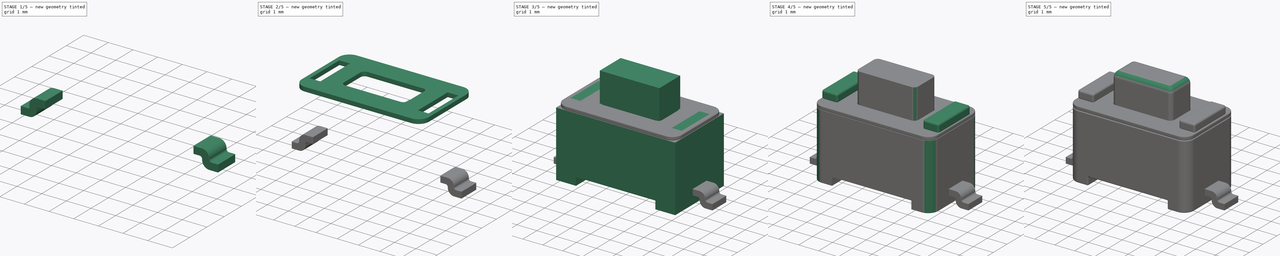
[diagram: build sequence overview — one tinted view per stage of 5, left to right]
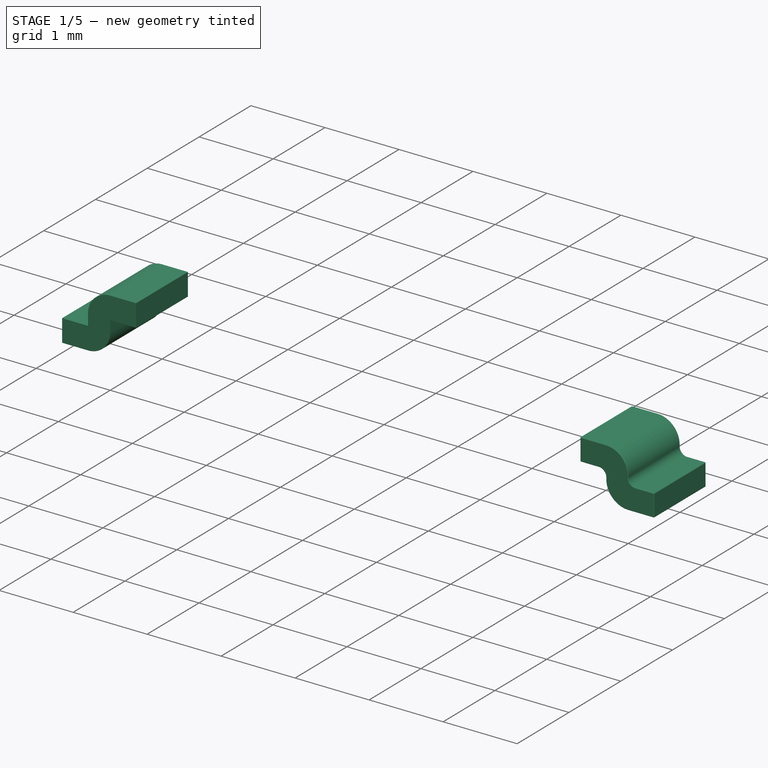
[diagram: stage 1 of 5 — iso view after this stage's code; geometry added in this stage tinted green]
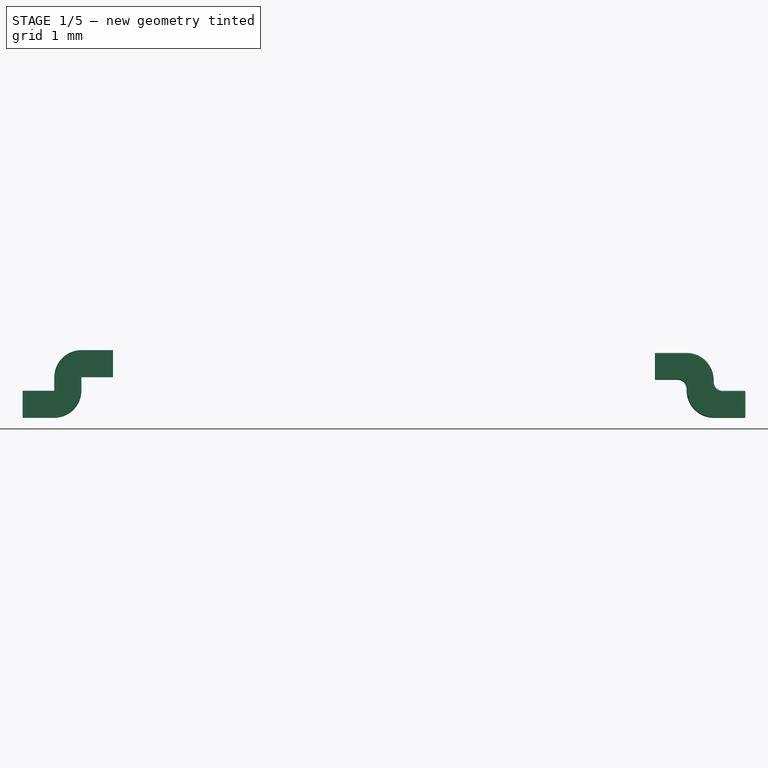
[diagram: stage 1 of 5 — front view after this stage's code; geometry added in this stage tinted green]
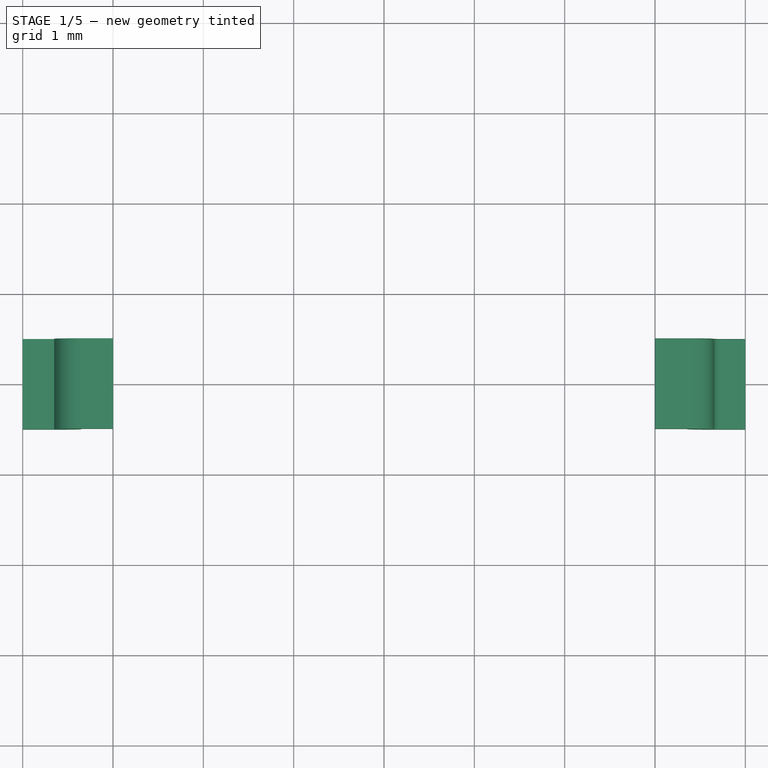
[diagram: stage 1 of 5 — top view after this stage's code; geometry added in this stage tinted green]
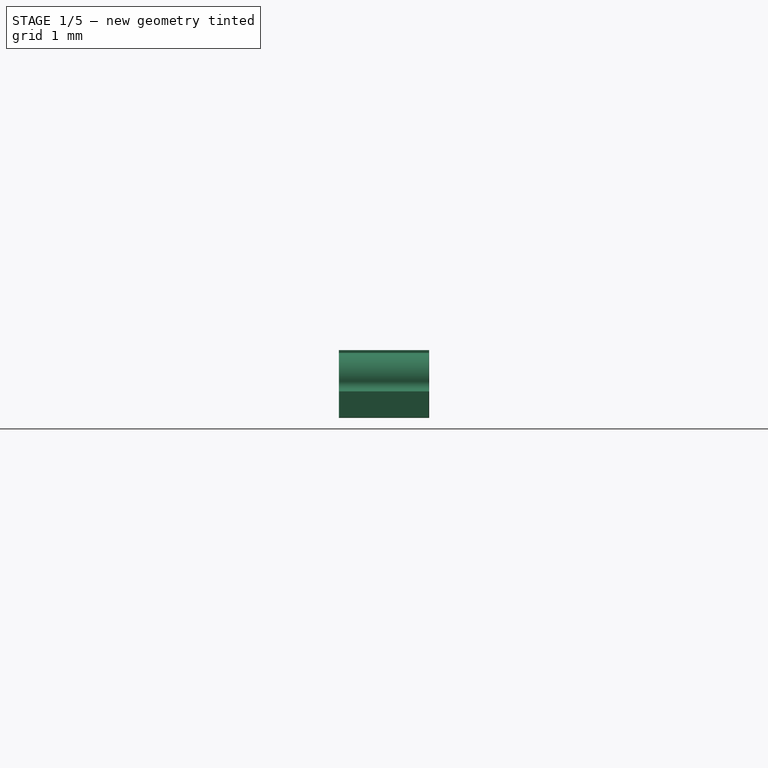
[diagram: stage 1 of 5 — right view after this stage's code; geometry added in this stage tinted green]
FCSTD DOCUMENT  (FreeCAD 0.15R4671 (Git))
Label: Button_3x6_SMD
License: All rights reserved
LicenseURL: http://en.wikipedia.org/wiki/All_rights_reserved
objects: PartDesign::Fillet×34, Sketcher::SketchObject×8, PartDesign::Pad×6, PartDesign::Mirrored×3, PartDesign::Pocket×2
note: 61 computed .brp shape members not serialized (recipe doc carries the construction recipe); baked Part::Feature solids carry a one-line shape summary decoded from their .brp

FEATURE [Sketcher::SketchObject] Sketch006
  Placement = pos=(0,0,0) rot=(-1,0,0;4.71239rad)
  sketch-geometry (16):
    g0: LineSegment StartX=-4 StartY=0.3 StartZ=0 EndX=-4 EndY=0 EndZ=0
    g1: LineSegment StartX=-4 StartY=0 StartZ=0 EndX=-3.35 EndY=0 EndZ=0
    g2: LineSegment StartX=-3.35 StartY=0 StartZ=0 EndX=-3.35 EndY=0.45 EndZ=0
    g3: LineSegment StartX=-3.35 StartY=0.45 StartZ=0 EndX=-3 EndY=0.45 EndZ=0
    g4: LineSegment StartX=-3 StartY=0.45 StartZ=0 EndX=-3 EndY=0.75 EndZ=0
    g5: LineSegment StartX=-3 StartY=0.75 StartZ=0 EndX=-3.65 EndY=0.75 EndZ=0
    g6: LineSegment StartX=-3.65 StartY=0.75 StartZ=0 EndX=-3.65 EndY=0.3 EndZ=0
    g7: LineSegment StartX=-3.65 StartY=0.3 StartZ=0 EndX=-4 EndY=0.3 EndZ=0
    g8: LineSegment StartX=3 StartY=0.42 StartZ=0 EndX=3.35 EndY=0.42 EndZ=0
    g9: LineSegment StartX=3.35 StartY=0.42 StartZ=0 EndX=3.35 EndY=0 EndZ=0
    g10: LineSegment StartX=3.35 StartY=0 StartZ=0 EndX=4 EndY=0 EndZ=0
    g11: LineSegment StartX=4 StartY=0 StartZ=0 EndX=4 EndY=0.3 EndZ=0
    g12: LineSegment StartX=4 StartY=0.3 StartZ=0 EndX=3.65 EndY=0.3 EndZ=0
    g13: LineSegment StartX=3.65 StartY=0.3 StartZ=0 EndX=3.65 EndY=0.72 EndZ=0
    g14: LineSegment StartX=3.65 StartY=0.72 StartZ=0 EndX=3 EndY=0.72 EndZ=0
    g15: LineSegment StartX=3 StartY=0.72 StartZ=0 EndX=3 EndY=0.42 EndZ=0
  constraints (48):
    c: PointOnObject(g0,g-1)
    c: Vertical(g0)
    c: Coincident(g0,g1)
    c: PointOnObject(g1,g-1)
    c: Coincident(g1,g2)
    c: Vertical(g2)
    c: Coincident(g2,g3)
    c: Horizontal(g3)
    c: Coincident(g3,g4)
    c: Coincident(g4,g5)
    c: Horizontal(g5)
    c: Coincident(g5,g6)
    c: Vertical(g6)
    c: Coincident(g6,g7)
    c: Coincident(g7,g0)
    c: Horizontal(g7)
    c: Vertical(g4)
    c: DistanceX(g-1,g0) = -4
    c: DistanceX(g1) = 0.65
    c: DistanceX(g5) = -0.65
    c: DistanceY(g4) = 0.3
    c: DistanceX(g1,g6) = -0.3
    c: DistanceY(g0) = -0.3
    c: DistanceY(g6) = -0.45
    c: Horizontal(g8)
    c: Coincident(g8,g9)
    c: PointOnObject(g9,g-1)
    c: Vertical(g9)
    c: Coincident(g9,g10)
    c: PointOnObject(g10,g-1)
    c: Coincident(g10,g11)
    c: Vertical(g11)
    c: Coincident(g11,g12)
    c: Horizontal(g12)
    c: Coincident(g12,g13)
    c: Vertical(g13)
    c: Coincident(g13,g14)
    c: Horizontal(g14)
    c: Coincident(g14,g15)
    c: Coincident(g15,g8)
    c: Vertical(g15)
    c: DistanceX(g-1,g10) = 4
    c: DistanceY(g11) = 0.3
    c: DistanceY(g15) = -0.3
    c: DistanceX(g8,g13) = 0.3
    c: DistanceX(g14) = -0.65
    c: DistanceX(g10) = 0.65
    c: DistanceY(g13) = 0.42
FEATURE [PartDesign::Pad] Pad004
  Length = 1
  Length2 = 100
  Midplane = true
  Placement = pos=(0,0,0) rot=(-1,0,0;4.71239rad)
  Sketch = -> Sketch006
  Type = 0
FEATURE [PartDesign::Fillet] Fillet022
  Base = -> Pad004 [Edge41]
  Placement = pos=(0,0,0) rot=(-1,0,0;4.71239rad)
  Radius = 0.3
FEATURE [PartDesign::Fillet] Fillet023
  Base = -> Fillet022 [Edge26]
  Placement = pos=(0,0,0) rot=(-1,0,0;4.71239rad)
  Radius = 0.3
FEATURE [PartDesign::Fillet] Fillet024
  Base = -> Fillet023 [Edge20]
  Placement = pos=(0,0,0) rot=(-1,0,0;4.71239rad)
  Radius = 0.1
FEATURE [PartDesign::Fillet] Fillet025
  Base = -> Fillet024 [Edge29]
  Placement = pos=(0,0,0) rot=(-1,0,0;4.71239rad)
  Radius = 0.1
FEATURE [PartDesign::Fillet] Fillet026
  Base = -> Fillet025 [Edge26,Edge22,Edge24,Edge20]
  Placement = pos=(0,0,0) rot=(-1,0,0;4.71239rad)
  Radius = 0.01
FEATURE [PartDesign::Fillet] Fillet027
  Base = -> Fillet026 [Edge4]
  Placement = pos=(0,0,0) rot=(-1,0,0;4.71239rad)
  Radius = 0.01
FEATURE [PartDesign::Fillet] Fillet028
  Base = -> Fillet027 [Edge44]
  Placement = pos=(0,0,0) rot=(-1,0,0;4.71239rad)
  Radius = 0.01
FEATURE [PartDesign::Fillet] Fillet029
  Base = -> Fillet028 [Edge129,Edge117]
  Placement = pos=(0,0,0) rot=(-1,0,0;4.71239rad)
  Radius = 0.3
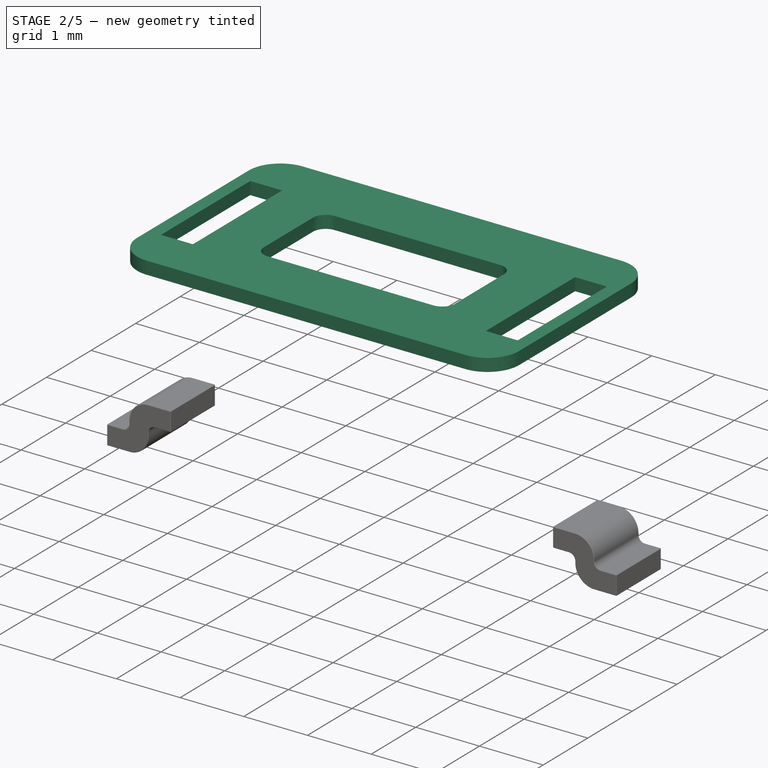
[diagram: stage 2 of 5 — iso view after this stage's code; geometry added in this stage tinted green]
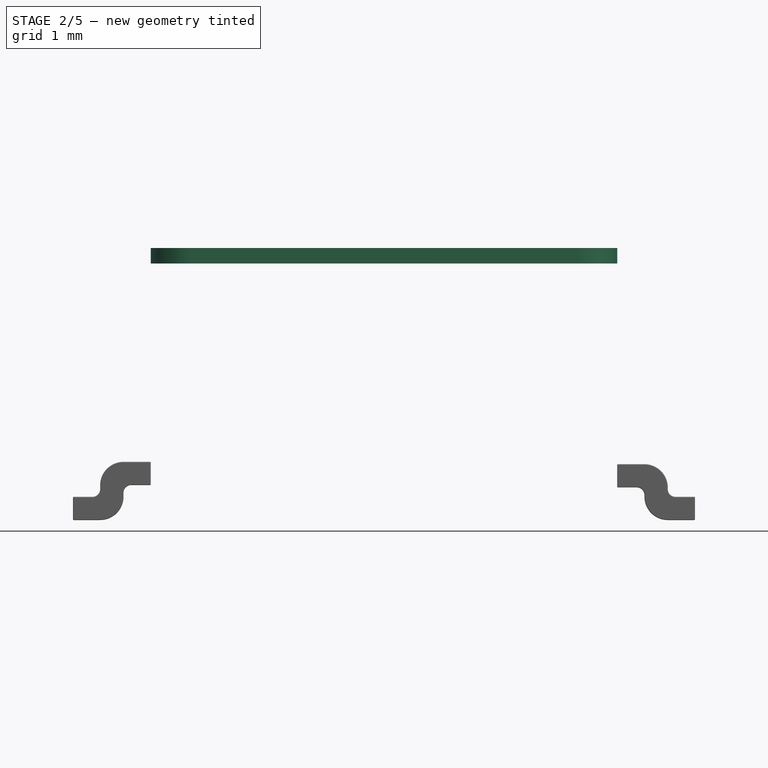
[diagram: stage 2 of 5 — front view after this stage's code; geometry added in this stage tinted green]
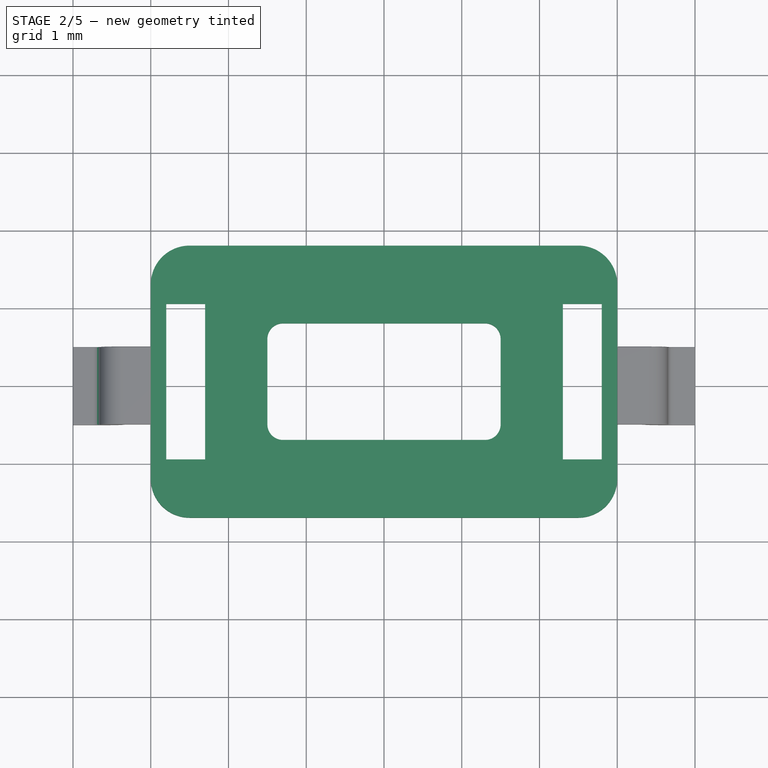
[diagram: stage 2 of 5 — top view after this stage's code; geometry added in this stage tinted green]
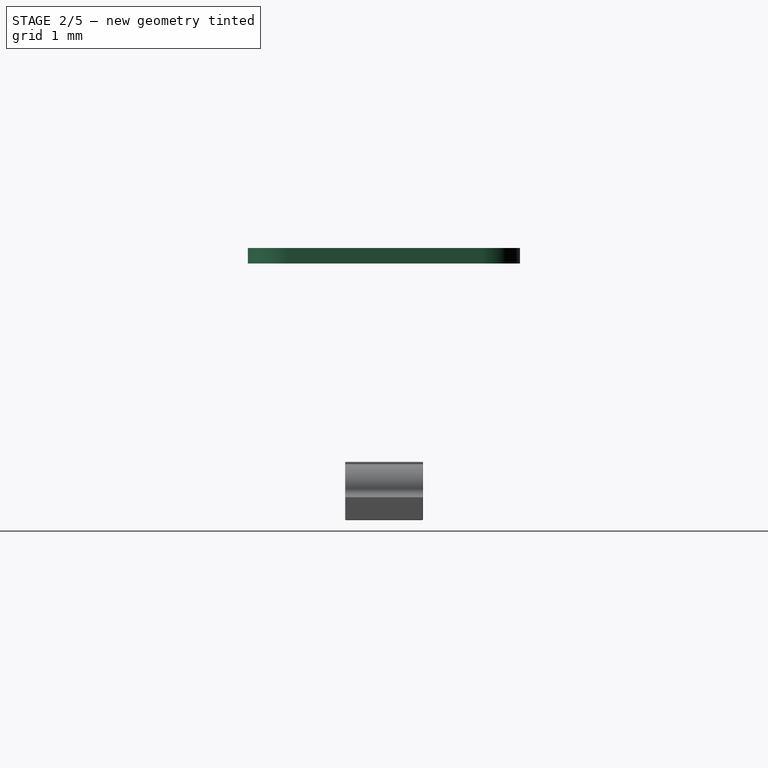
[diagram: stage 2 of 5 — right view after this stage's code; geometry added in this stage tinted green]
FEATURE [Sketcher::SketchObject] Sketch001
  Placement = pos=(0,0,3.3) rot=(0,0,1;0rad)
  sketch-geometry (8):
    g0: LineSegment StartX=-3 StartY=1.75 StartZ=0 EndX=3 EndY=1.75 EndZ=0
    g1: LineSegment StartX=3 StartY=1.75 StartZ=0 EndX=3 EndY=-1.75 EndZ=0
    g2: LineSegment StartX=3 StartY=-1.75 StartZ=0 EndX=-3 EndY=-1.75 EndZ=0
    g3: LineSegment StartX=-3 StartY=-1.75 StartZ=0 EndX=-3 EndY=1.75 EndZ=0
    g4: LineSegment StartX=-1.5 StartY=0.75 StartZ=0 EndX=1.5 EndY=0.75 EndZ=0
    g5: LineSegment StartX=1.5 StartY=0.75 StartZ=0 EndX=1.5 EndY=-0.75 EndZ=0
    g6: LineSegment StartX=1.5 StartY=-0.75 StartZ=0 EndX=-1.5 EndY=-0.75 EndZ=0
    g7: LineSegment StartX=-1.5 StartY=-0.75 StartZ=0 EndX=-1.5 EndY=0.75 EndZ=0
  constraints (22):
    c: Coincident(g0,g1)
    c: Coincident(g1,g2)
    c: Coincident(g2,g3)
    c: Coincident(g3,g0)
    c: Horizontal(g0)
    c: Horizontal(g2)
    c: Vertical(g1)
    c: Vertical(g3)
    c: Symmetric(g0,g1,g-1)
    c: DistanceX(g0) = 6
    c: DistanceY(g1) = -3.5
    c: Coincident(g4,g5)
    c: Coincident(g5,g6)
    c: Coincident(g6,g7)
    c: Coincident(g7,g4)
    c: Horizontal(g4)
    c: Horizontal(g6)
    c: Vertical(g5)
    c: Vertical(g7)
    c: Symmetric(g5,g4,g-1)
    c: DistanceX(g4) = 3
    c: DistanceY(g5) = -1.5
FEATURE [PartDesign::Pad] Pad001
  Length = 0.2
  Length2 = 100
  Placement = pos=(0,0,3.3) rot=(0,0,1;0rad)
  Sketch = -> Sketch001
  Type = 0
FEATURE [Sketcher::SketchObject] Sketch004
  Placement = pos=(0,0,3.5) rot=(0,0,1;0rad)
  Support = -> Pad001 [Face10]
  sketch-geometry (4):
    g0: LineSegment StartX=-2.8 StartY=1 StartZ=0 EndX=-2.3 EndY=1 EndZ=0
    g1: LineSegment StartX=-2.3 StartY=1 StartZ=0 EndX=-2.3 EndY=-1 EndZ=0
    g2: LineSegment StartX=-2.3 StartY=-1 StartZ=0 EndX=-2.8 EndY=-1 EndZ=0
    g3: LineSegment StartX=-2.8 StartY=-1 StartZ=0 EndX=-2.8 EndY=1 EndZ=0
  constraints (12):
    c: Coincident(g0,g1)
    c: Coincident(g1,g2)
    c: Coincident(g2,g3)
    c: Coincident(g3,g0)
    c: Horizontal(g0)
    c: Horizontal(g2)
    c: Vertical(g1)
    c: Vertical(g3)
    c: Symmetric(g1,g0,g-1)
    c: DistanceY(g1) = -2
    c: DistanceX(g0) = 0.5
    c: DistanceX(g-1,g1) = -2.3
FEATURE [PartDesign::Pocket] Pocket
  Length = 0.2
  Placement = pos=(0,0,3.3) rot=(0,0,1;0rad)
  Sketch = -> Sketch004
  Type = 0
FEATURE [PartDesign::Mirrored] Mirrored001
  MirrorPlane = -> Sketch004 [V_Axis]
  Originals = -> [Pocket]
  Placement = pos=(0,0,3.3) rot=(0,0,1;0rad)
FEATURE [PartDesign::Fillet] Fillet001
  Base = -> Mirrored001 [Edge41,Edge42,Edge44,Edge43]
  Placement = pos=(0,0,3.3) rot=(0,0,1;0rad)
  Radius = 0.2
FEATURE [PartDesign::Fillet] Fillet003
  Base = -> Fillet001 [Edge37,Edge40,Edge42,Edge38]
  Placement = pos=(0,0,3.3) rot=(0,0,1;0rad)
  Radius = 0.5
FEATURE [PartDesign::Fillet] Fillet030
  Base = -> Fillet029 [Edge26,Edge25]
  Placement = pos=(0,0,0) rot=(-1,0,0;4.71239rad)
  Radius = 0.1
FEATURE [PartDesign::Fillet] Fillet031
  Base = -> Fillet030 [Edge20,Edge24,Edge26,Edge22]
  Placement = pos=(0,0,0) rot=(-1,0,0;4.71239rad)
  Radius = 0.01
FEATURE [PartDesign::Fillet] Fillet032
  Base = -> Fillet031 [Edge13]
  Placement = pos=(0,0,0) rot=(-1,0,0;4.71239rad)
  Radius = 0.01
FEATURE [PartDesign::Fillet] Fillet033  label="PINS"
  Base = -> Fillet032 [Edge44]
  Placement = pos=(0,0,0) rot=(-1,0,0;4.71239rad)
  Radius = 0.01
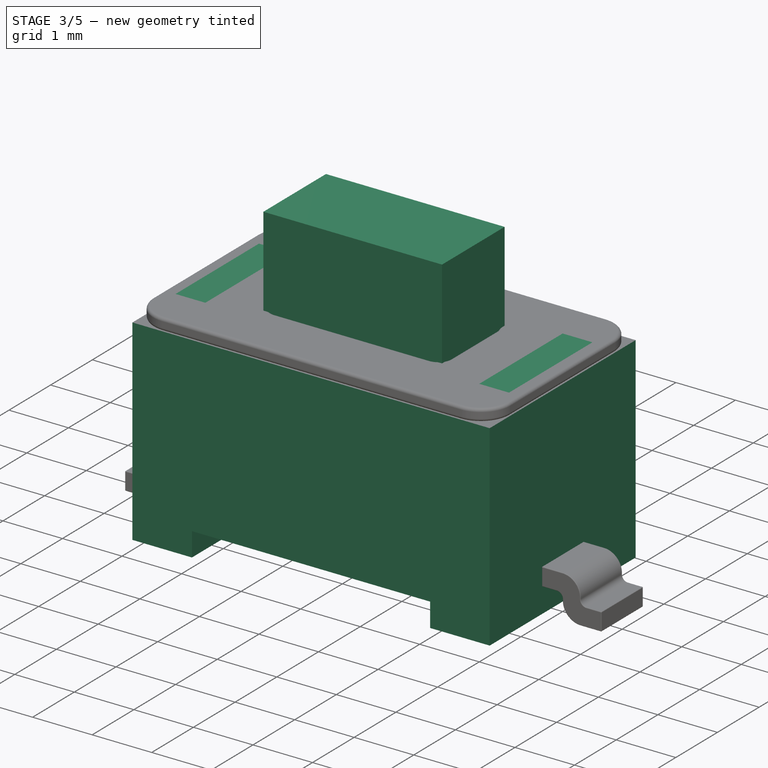
[diagram: stage 3 of 5 — iso view after this stage's code; geometry added in this stage tinted green]
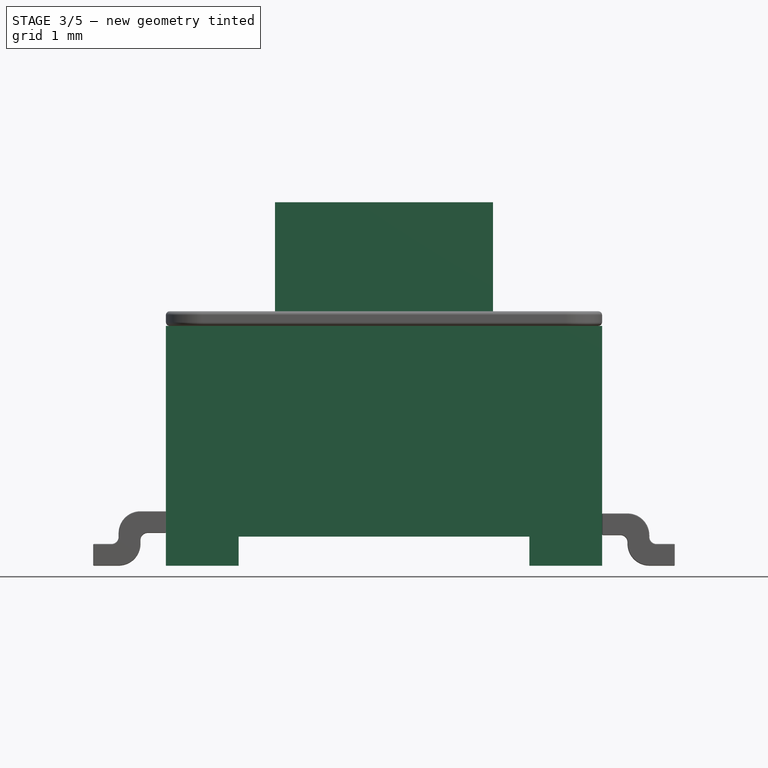
[diagram: stage 3 of 5 — front view after this stage's code; geometry added in this stage tinted green]
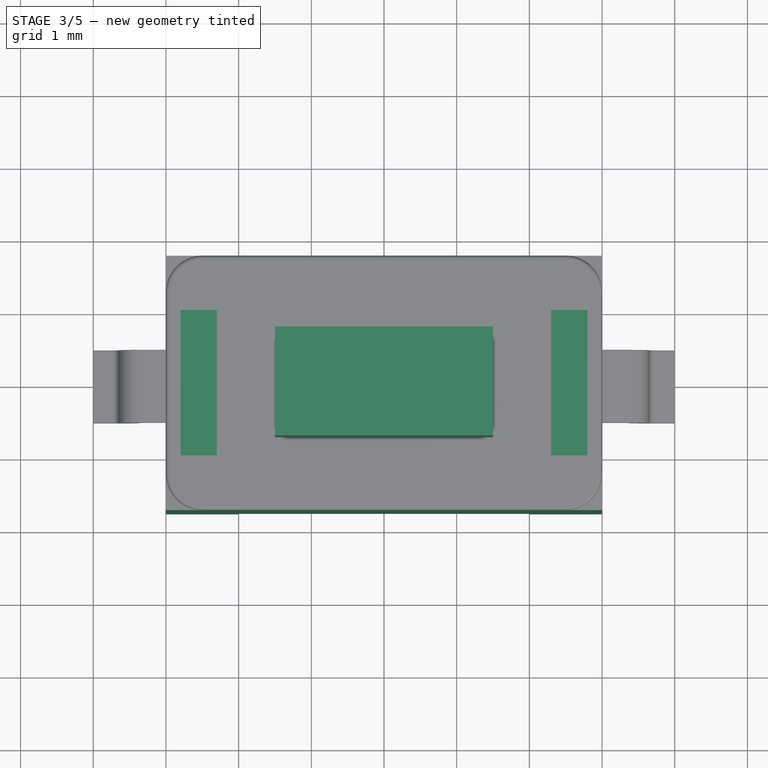
[diagram: stage 3 of 5 — top view after this stage's code; geometry added in this stage tinted green]
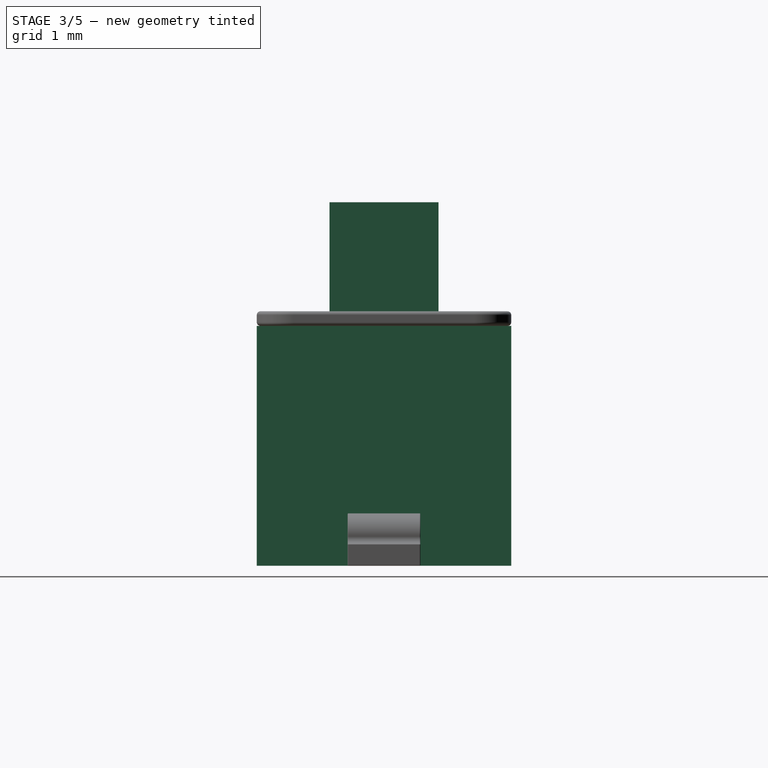
[diagram: stage 3 of 5 — right view after this stage's code; geometry added in this stage tinted green]
FEATURE [Sketcher::SketchObject] Sketch
  sketch-geometry (4):
    g0: LineSegment StartX=-3 StartY=1.75 StartZ=0 EndX=3 EndY=1.75 EndZ=0
    g1: LineSegment StartX=3 StartY=1.75 StartZ=0 EndX=3 EndY=-1.75 EndZ=0
    g2: LineSegment StartX=3 StartY=-1.75 StartZ=0 EndX=-3 EndY=-1.75 EndZ=0
    g3: LineSegment StartX=-3 StartY=-1.75 StartZ=0 EndX=-3 EndY=1.75 EndZ=0
  constraints (11):
    c: Coincident(g0,g1)
    c: Coincident(g1,g2)
    c: Coincident(g2,g3)
    c: Coincident(g3,g0)
    c: Horizontal(g0)
    c: Horizontal(g2)
    c: Vertical(g1)
    c: Vertical(g3)
    c: Symmetric(g0,g1,g-1)
    c: DistanceX(g0) = 6
    c: DistanceY(g1) = -3.5
FEATURE [PartDesign::Pad] Pad
  Length = 3.3
  Length2 = 100
  Sketch = -> Sketch
  Type = 0
FEATURE [Sketcher::SketchObject] Sketch002
  Placement = pos=(0,0,3.3) rot=(0,0,1;0rad)
  Support = -> Pad [Face6]
  sketch-geometry (4):
    g0: LineSegment StartX=-1.5 StartY=0.75 StartZ=0 EndX=1.5 EndY=0.75 EndZ=0
    g1: LineSegment StartX=1.5 StartY=0.75 StartZ=0 EndX=1.5 EndY=-0.75 EndZ=0
    g2: LineSegment StartX=1.5 StartY=-0.75 StartZ=0 EndX=-1.5 EndY=-0.75 EndZ=0
    g3: LineSegment StartX=-1.5 StartY=-0.75 StartZ=0 EndX=-1.5 EndY=0.75 EndZ=0
  constraints (11):
    c: Coincident(g0,g1)
    c: Coincident(g1,g2)
    c: Coincident(g2,g3)
    c: Coincident(g3,g0)
    c: Horizontal(g0)
    c: Horizontal(g2)
    c: Vertical(g1)
    c: Vertical(g3)
    c: Symmetric(g0,g1,g-1)
    c: DistanceX(g0) = 3
    c: DistanceY(g1) = -1.5
FEATURE [PartDesign::Pad] Pad002
  Length = 1.7
  Length2 = 100
  Sketch = -> Sketch002
  Type = 0
FEATURE [Sketcher::SketchObject] Sketch003
  Placement = pos=(0,0,3.3) rot=(0,0,1;0rad)
  Support = -> Pad002 [Face5]
  sketch-geometry (4):
    g0: LineSegment StartX=-2.8 StartY=1 StartZ=0 EndX=-2.3 EndY=1 EndZ=0
    g1: LineSegment StartX=-2.3 StartY=1 StartZ=0 EndX=-2.3 EndY=-1 EndZ=0
    g2: LineSegment StartX=-2.3 StartY=-1 StartZ=0 EndX=-2.8 EndY=-1 EndZ=0
    g3: LineSegment StartX=-2.8 StartY=-1 StartZ=0 EndX=-2.8 EndY=1 EndZ=0
  constraints (12):
    c: Coincident(g0,g1)
    c: Coincident(g1,g2)
    c: Coincident(g2,g3)
    c: Coincident(g3,g0)
    c: Horizontal(g0)
    c: Horizontal(g2)
    c: Vertical(g1)
    c: Vertical(g3)
    c: Symmetric(g0,g1,g-1)
    c: DistanceY(g1) = -2
    c: DistanceX(g0) = 0.5
    c: DistanceX(g-1,g1) = -2.3
FEATURE [PartDesign::Pad] Pad003
  Length = 0.2
  Length2 = 100
  Sketch = -> Sketch003
  Type = 0
FEATURE [PartDesign::Mirrored] Mirrored
  MirrorPlane = -> Sketch003 [V_Axis]
  Originals = -> [Pad003]
FEATURE [Sketcher::SketchObject] Sketch005
  Placement = pos=(0,-1.75,0) rot=(1,0,0;1.5708rad)
  Support = -> Mirrored [Face6]
  sketch-geometry (4):
    g0: LineSegment StartX=-2 StartY=0 StartZ=0 EndX=2 EndY=0 EndZ=0
    g1: LineSegment StartX=2 StartY=0 StartZ=0 EndX=2 EndY=0.4 EndZ=0
    g2: LineSegment StartX=2 StartY=0.4 StartZ=0 EndX=-2 EndY=0.4 EndZ=0
    g3: LineSegment StartX=-2 StartY=0.4 StartZ=0 EndX=-2 EndY=0 EndZ=0
  constraints (12):
    c: Coincident(g0,g1)
    c: Coincident(g1,g2)
    c: Coincident(g2,g3)
    c: Coincident(g3,g0)
    c: Horizontal(g0)
    c: Horizontal(g2)
    c: Vertical(g1)
    c: Vertical(g3)
    c: PointOnObject(g0,g-1)
    c: Symmetric(g0,g0,g-1)
    c: DistanceX(g2) = -4
    c: DistanceY(g1) = 0.4
FEATURE [PartDesign::Pocket] Pocket001
  Length = 5
  Sketch = -> Sketch005
  Type = 1
FEATURE [PartDesign::Fillet] Fillet018
  Base = -> Fillet003 [Edge27]
  Placement = pos=(0,0,3.3) rot=(0,0,1;0rad)
  Radius = 0.05
FEATURE [PartDesign::Fillet] Fillet019
  Base = -> Fillet018 [Edge3]
  Placement = pos=(0,0,3.3) rot=(0,0,1;0rad)
  Radius = 0.05
FEATURE [PartDesign::Fillet] Fillet020
  Base = -> Fillet019 [Edge60]
  Placement = pos=(0,0,3.3) rot=(0,0,1;0rad)
  Radius = 0.05
FEATURE [PartDesign::Fillet] Fillet021  label="PLATE"
  Base = -> Fillet020 [Edge74]
  Placement = pos=(0,0,3.3) rot=(0,0,1;0rad)
  Radius = 0.05
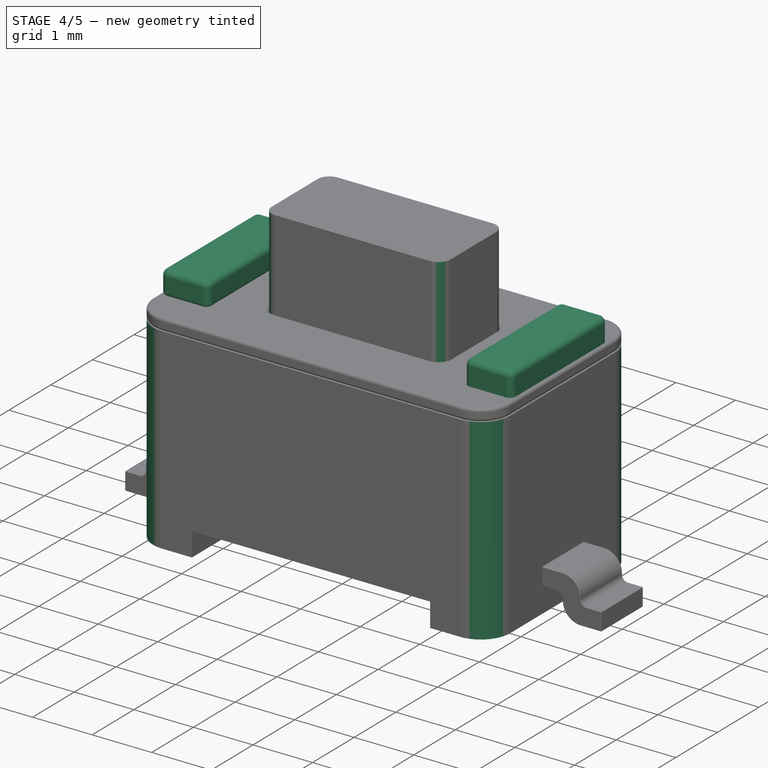
[diagram: stage 4 of 5 — iso view after this stage's code; geometry added in this stage tinted green]
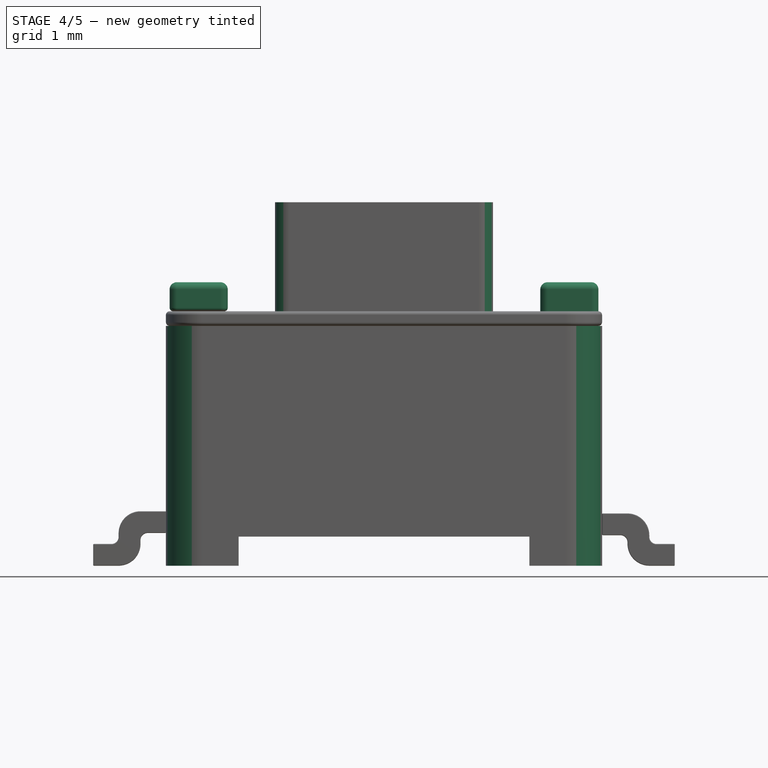
[diagram: stage 4 of 5 — front view after this stage's code; geometry added in this stage tinted green]
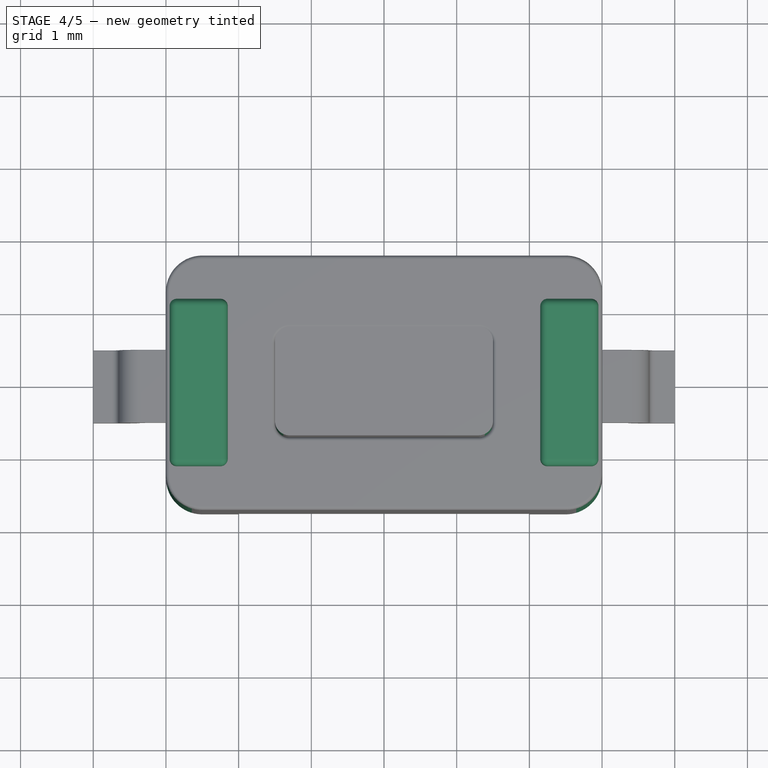
[diagram: stage 4 of 5 — top view after this stage's code; geometry added in this stage tinted green]
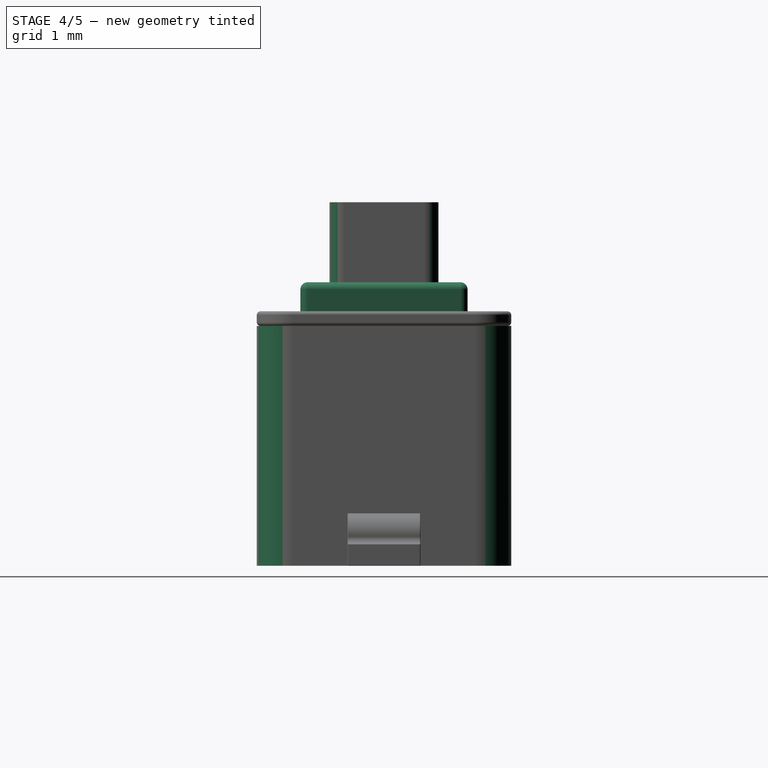
[diagram: stage 4 of 5 — right view after this stage's code; geometry added in this stage tinted green]
FEATURE [PartDesign::Fillet] Fillet
  Base = -> Pocket001 [Edge48,Edge51,Edge47,Edge45]
  Radius = 0.2
FEATURE [PartDesign::Fillet] Fillet002
  Base = -> Fillet [Edge44,Edge46,Edge42,Edge43]
  Radius = 0.5
FEATURE [Sketcher::SketchObject] Sketch007
  Placement = pos=(0,0,3.5) rot=(0,0,1;0rad)
  Support = -> Fillet002 [Face33]
  sketch-geometry (4):
    g0: LineSegment StartX=-2.95 StartY=1.15 StartZ=0 EndX=-2.15 EndY=1.15 EndZ=0
    g1: LineSegment StartX=-2.15 StartY=1.15 StartZ=0 EndX=-2.15 EndY=-1.15 EndZ=0
    g2: LineSegment StartX=-2.15 StartY=-1.15 StartZ=0 EndX=-2.95 EndY=-1.15 EndZ=0
    g3: LineSegment StartX=-2.95 StartY=-1.15 StartZ=0 EndX=-2.95 EndY=1.15 EndZ=0
  constraints (12):
    c: Coincident(g0,g1)
    c: Coincident(g1,g2)
    c: Coincident(g2,g3)
    c: Coincident(g3,g0)
    c: Horizontal(g0)
    c: Horizontal(g2)
    c: Vertical(g1)
    c: Vertical(g3)
    c: Symmetric(g1,g0,g-1)
    c: DistanceY(g1) = -2.3
    c: DistanceX(g0) = 0.8
    c: DistanceX(g-1,g2) = -2.95
FEATURE [PartDesign::Pad] Pad005
  Length = 0.4
  Length2 = 100
  Sketch = -> Sketch007
  Type = 0
FEATURE [PartDesign::Mirrored] Mirrored002
  MirrorPlane = -> Sketch007 [V_Axis]
  Originals = -> [Pad005]
FEATURE [PartDesign::Fillet] Fillet004
  Base = -> Mirrored002 [Edge5,Edge1,Edge2,Edge8]
  Radius = 0.1
FEATURE [PartDesign::Fillet] Fillet005
  Base = -> Fillet004 [Edge24]
  Radius = 0.1
FEATURE [PartDesign::Fillet] Fillet006
  Base = -> Fillet005 [Edge16]
  Radius = 0.05
FEATURE [PartDesign::Fillet] Fillet007
  Base = -> Fillet006 [Edge146,Edge145,Edge150,Edge148]
  Radius = 0.1
FEATURE [PartDesign::Fillet] Fillet008
  Base = -> Fillet007 [Edge28]
  Radius = 0.1
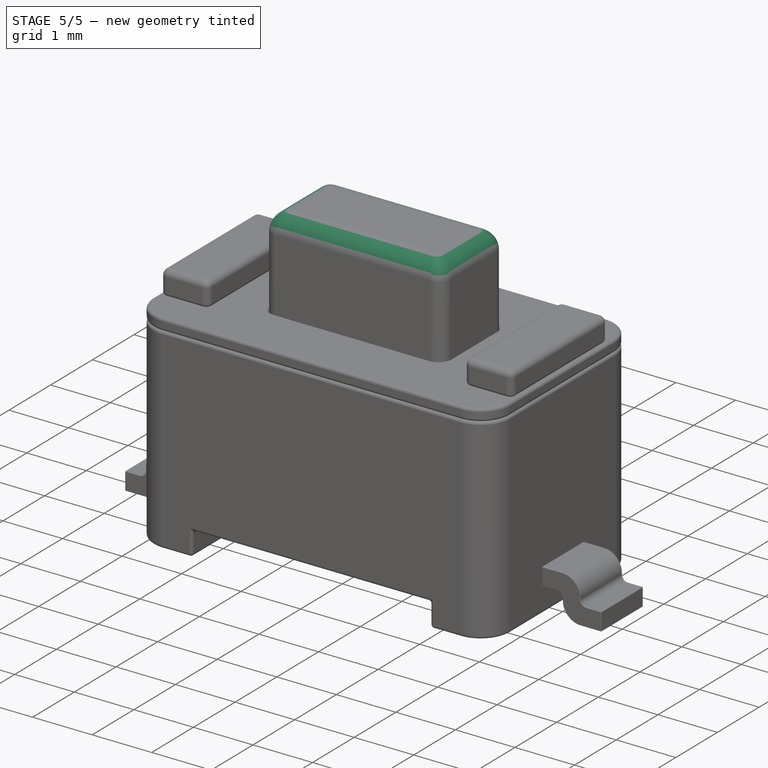
[diagram: stage 5 of 5 — iso view after this stage's code; geometry added in this stage tinted green]
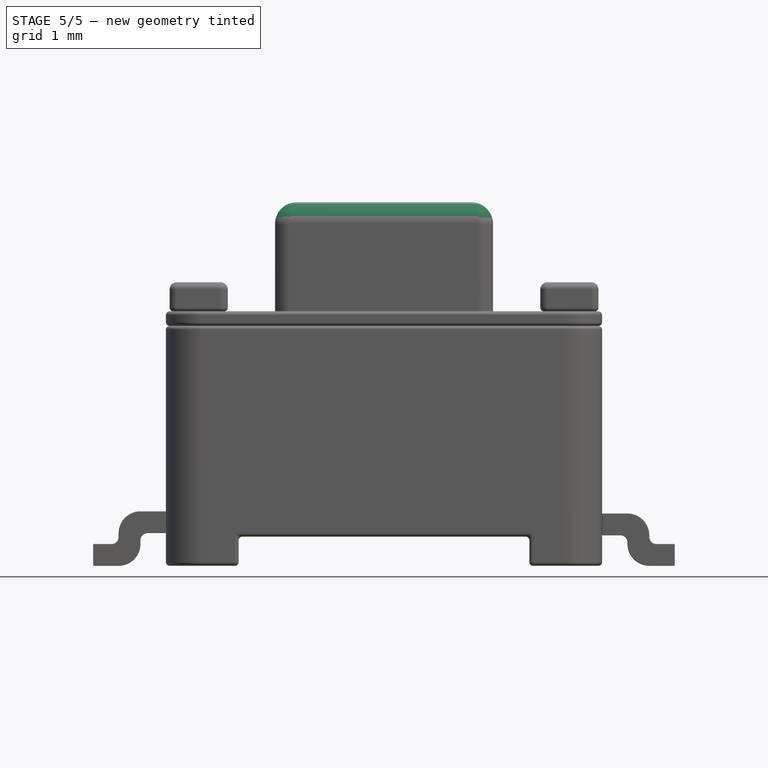
[diagram: stage 5 of 5 — front view after this stage's code; geometry added in this stage tinted green]
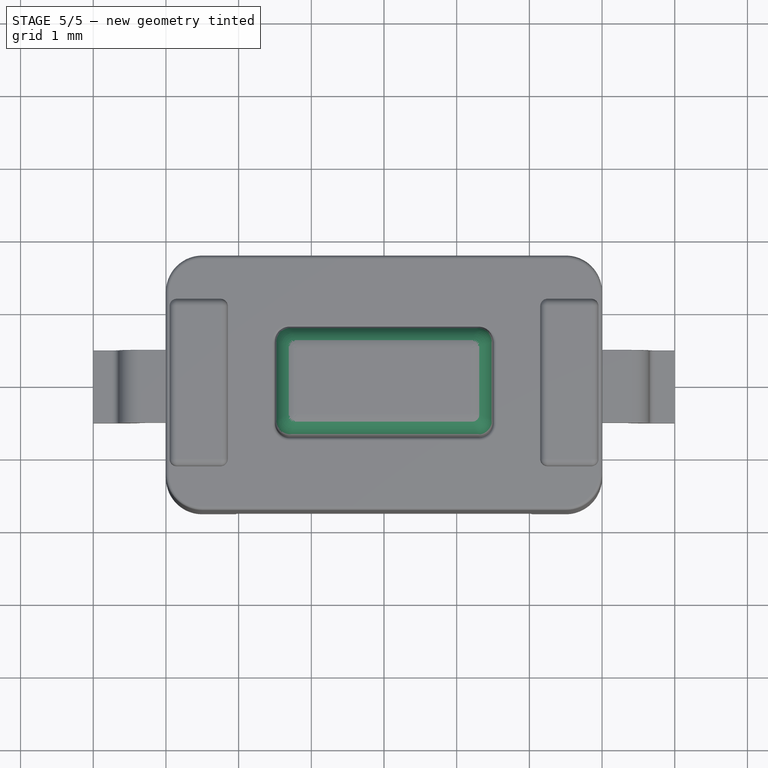
[diagram: stage 5 of 5 — top view after this stage's code; geometry added in this stage tinted green]
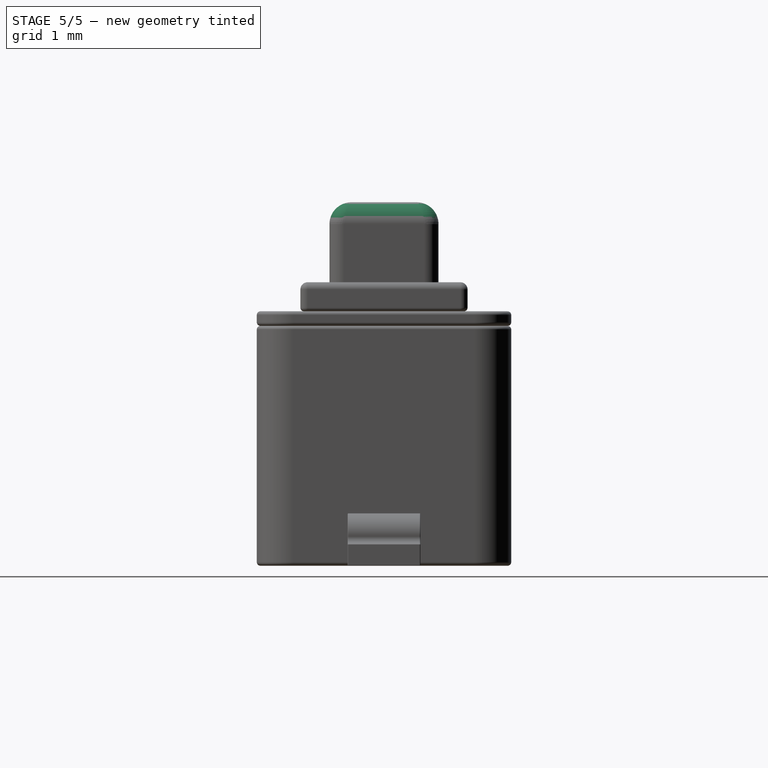
[diagram: stage 5 of 5 — right view after this stage's code; geometry added in this stage tinted green]
FEATURE [PartDesign::Fillet] Fillet009
  Base = -> Fillet008 [Edge16]
  Radius = 0.05
FEATURE [PartDesign::Fillet] Fillet010
  Base = -> Fillet009 [Edge94,Edge109,Edge91,Edge111]
  Radius = 0.05
FEATURE [PartDesign::Fillet] Fillet011
  Base = -> Fillet010 [Edge5]
  Radius = 0.05
FEATURE [PartDesign::Fillet] Fillet012
  Base = -> Fillet011 [Edge6]
  Radius = 0.05
FEATURE [PartDesign::Fillet] Fillet013
  Base = -> Fillet012 [Edge7]
  Radius = 0.05
FEATURE [PartDesign::Fillet] Fillet014
  Base = -> Fillet013 [Edge29]
  Radius = 0.05
FEATURE [PartDesign::Fillet] Fillet015
  Base = -> Fillet014 [Edge8]
  Radius = 0.05
FEATURE [PartDesign::Fillet] Fillet016
  Base = -> Fillet015 [Edge2,Edge3]
  Radius = 0.05
FEATURE [PartDesign::Fillet] Fillet017  label="HOUSING"
  Base = -> Fillet016 [Edge155]
  Radius = 0.3
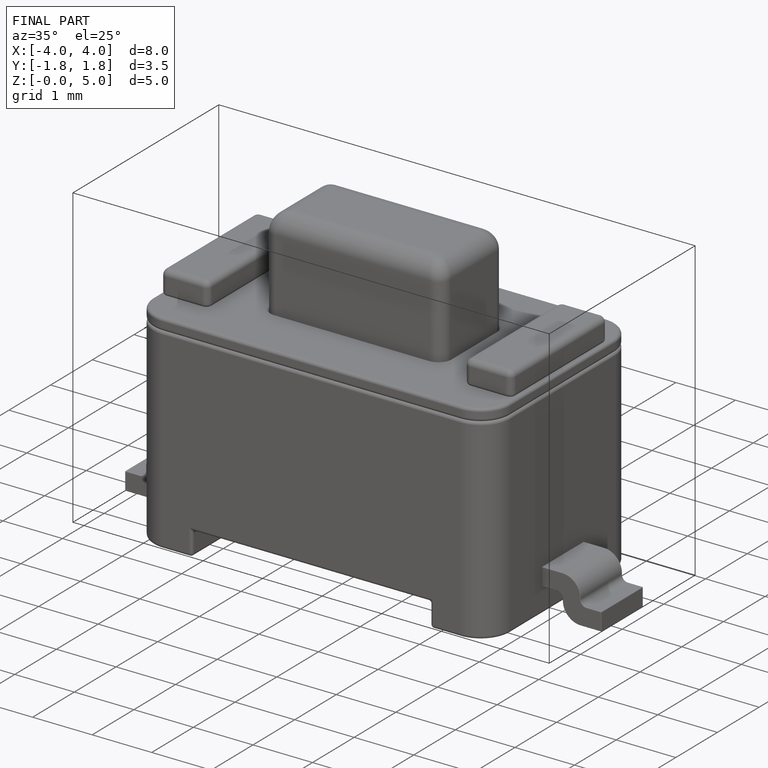
[diagram: finished part — iso view with bounding-box wireframe]
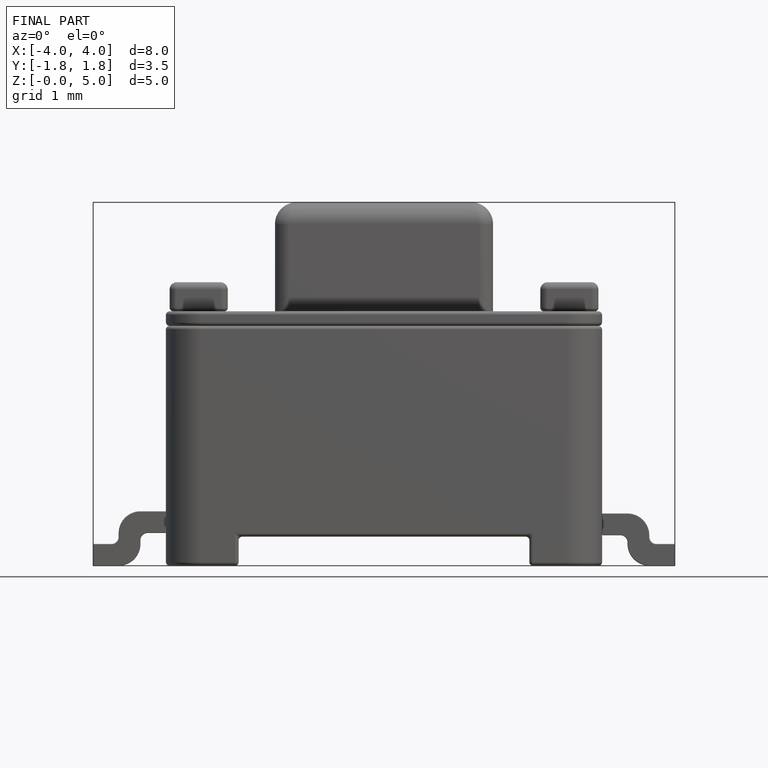
[diagram: finished part — front view with bounding-box wireframe]
